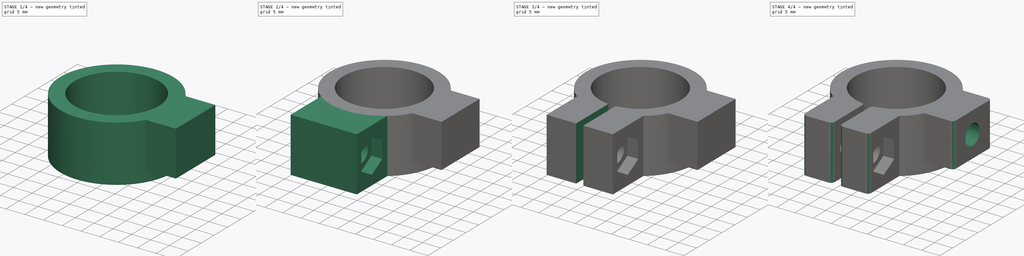
[diagram: build sequence overview — one tinted view per stage of 4, left to right]
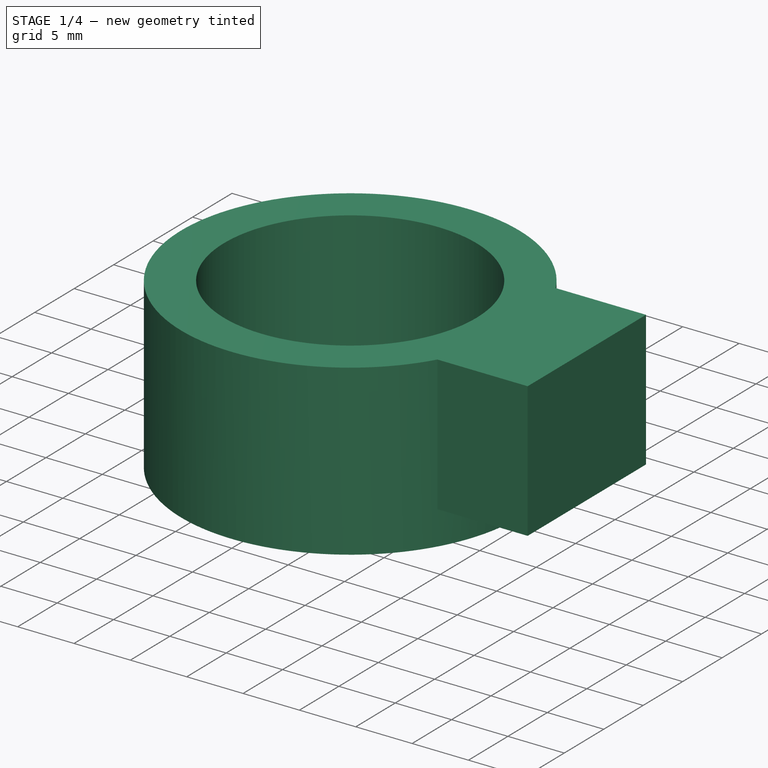
[diagram: stage 1 of 4 — iso view after this stage's code; geometry added in this stage tinted green]
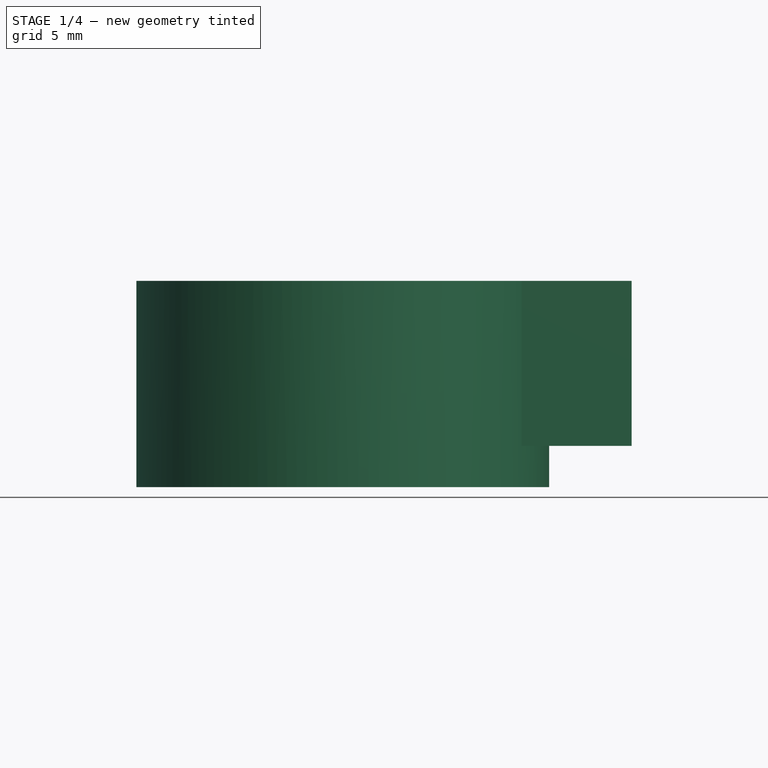
[diagram: stage 1 of 4 — front view after this stage's code; geometry added in this stage tinted green]
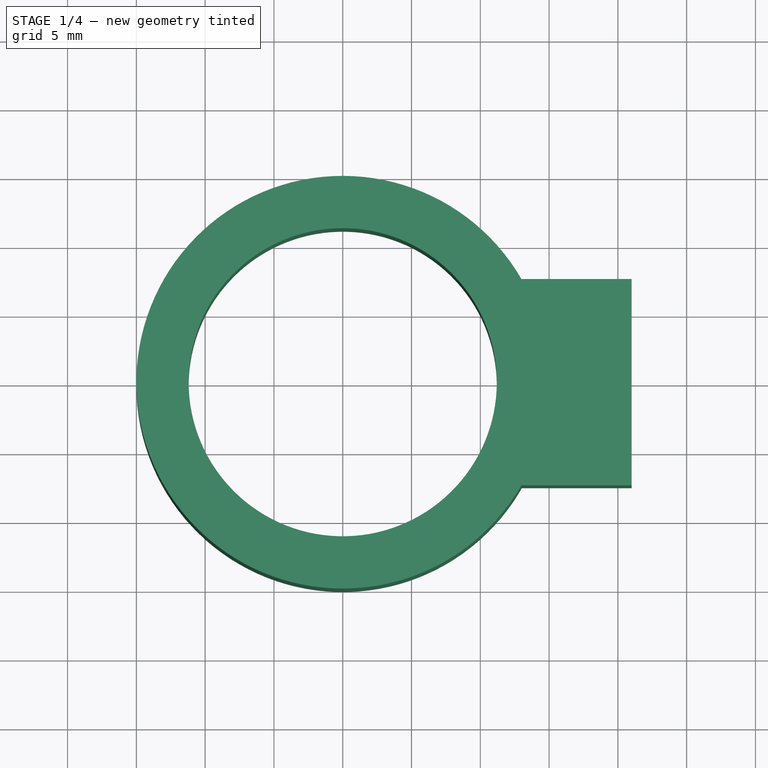
[diagram: stage 1 of 4 — top view after this stage's code; geometry added in this stage tinted green]
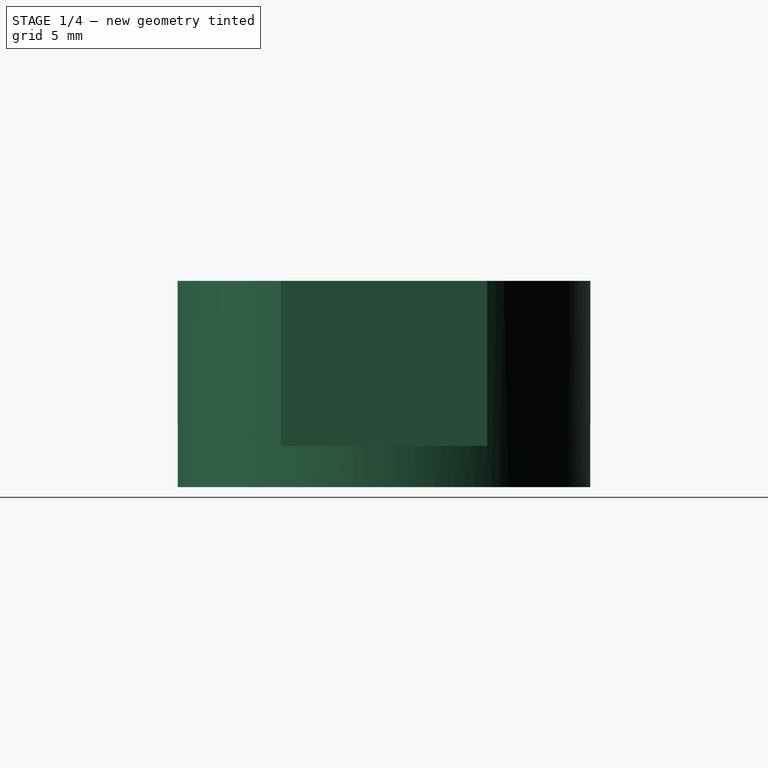
[diagram: stage 1 of 4 — right view after this stage's code; geometry added in this stage tinted green]
FCSTD DOCUMENT  (FreeCAD 0.16R)
Label: iSpecmount
License: All rights reserved
LicenseURL: http://en.wikipedia.org/wiki/All_rights_reserved
objects: Sketcher::SketchObject×10, PartDesign::Pocket×7, PartDesign::Pad×3, PartDesign::Fillet×2
note: 32 computed .brp shape members not serialized (recipe doc carries the construction recipe); baked Part::Feature solids carry a one-line shape summary decoded from their .brp

FEATURE [Sketcher::SketchObject] Sketch
  sketch-geometry (1):
    g0: Circle CenterX=0 CenterY=0 CenterZ=0 NormalX=0 NormalY=0 NormalZ=1 Radius=15
  constraints (2):
    c: Radius(g0) = 15
    c: Coincident(g0,g-1)
FEATURE [PartDesign::Pad] Pad
  Length = 15
  Length2 = 100
  Sketch = -> Sketch
  Type = 0
FEATURE [Sketcher::SketchObject] Sketch001
  Placement = pos=(0,0,15) rot=(0,0,1;0rad)
  Support = -> Pad [Face3]
  sketch-geometry (1):
    g0: Circle CenterX=0 CenterY=0 CenterZ=0 NormalX=0 NormalY=0 NormalZ=1 Radius=11.2
  constraints (2):
    c: Coincident(g0,g-1)
    c: Radius(g0) = 11.2
FEATURE [PartDesign::Pocket] Pocket
  Length = 5
  Sketch = -> Sketch001
  Type = 1
FEATURE [Sketcher::SketchObject] Sketch002
  ExternalGeometry = -> [Pocket]
  Placement = pos=(0,0,15) rot=(0,0,1;0rad)
  Support = -> Pocket [Face3]
  sketch-geometry (4):
    g0: LineSegment StartX=13 StartY=7.5 StartZ=0 EndX=21 EndY=7.5 EndZ=0
    g1: LineSegment StartX=21 StartY=7.5 StartZ=0 EndX=21 EndY=-7.5 EndZ=0
    g2: LineSegment StartX=21 StartY=-7.5 StartZ=0 EndX=13 EndY=-7.5 EndZ=0
    g3: LineSegment StartX=13 StartY=-7.5 StartZ=0 EndX=13 EndY=7.5 EndZ=0
  constraints (12):
    c: Coincident(g0,g1)
    c: Coincident(g1,g2)
    c: Coincident(g2,g3)
    c: Coincident(g3,g0)
    c: Horizontal(g0)
    c: Horizontal(g2)
    c: Vertical(g1)
    c: Vertical(g3)
    c: Distance(g1) = 15
    c: Symmetric(g0,g2,g-1)
    c: Distance(g0) = 8
    c: DistanceX(g2) = 13
FEATURE [PartDesign::Pad] Pad001
  Length = 12
  Length2 = 100
  Reversed = true
  Sketch = -> Sketch002
  Type = 0
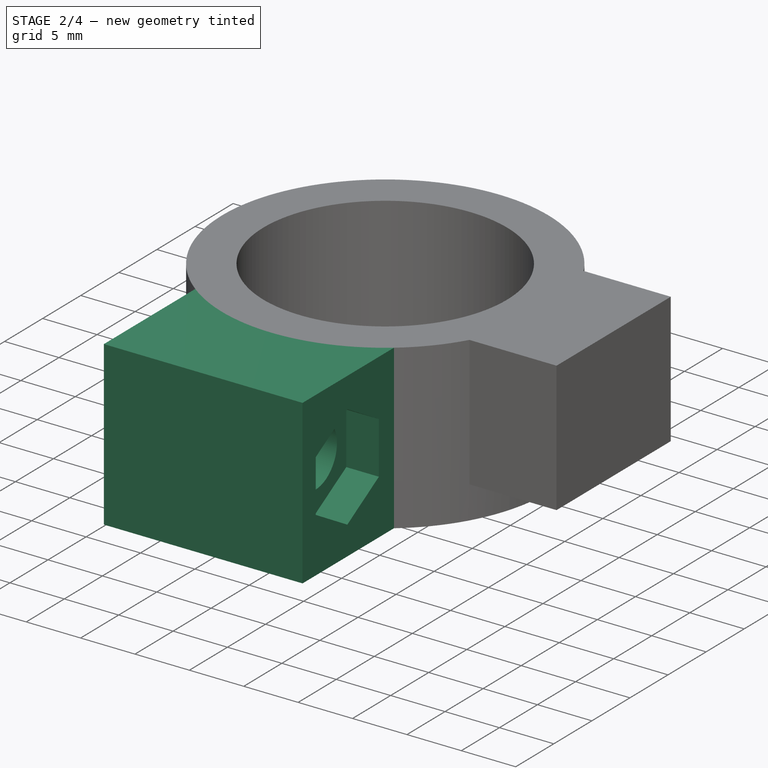
[diagram: stage 2 of 4 — iso view after this stage's code; geometry added in this stage tinted green]
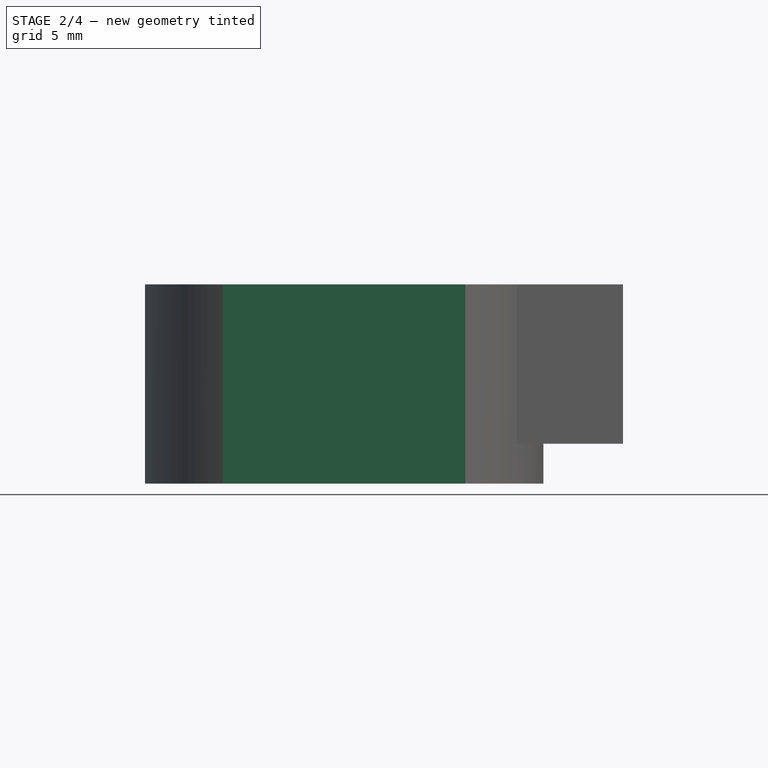
[diagram: stage 2 of 4 — front view after this stage's code; geometry added in this stage tinted green]
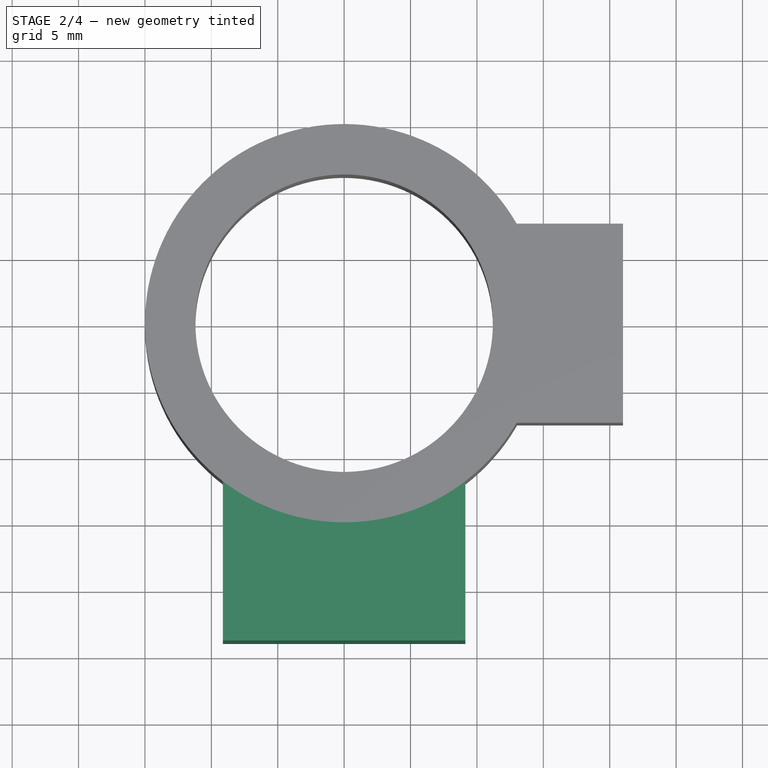
[diagram: stage 2 of 4 — top view after this stage's code; geometry added in this stage tinted green]
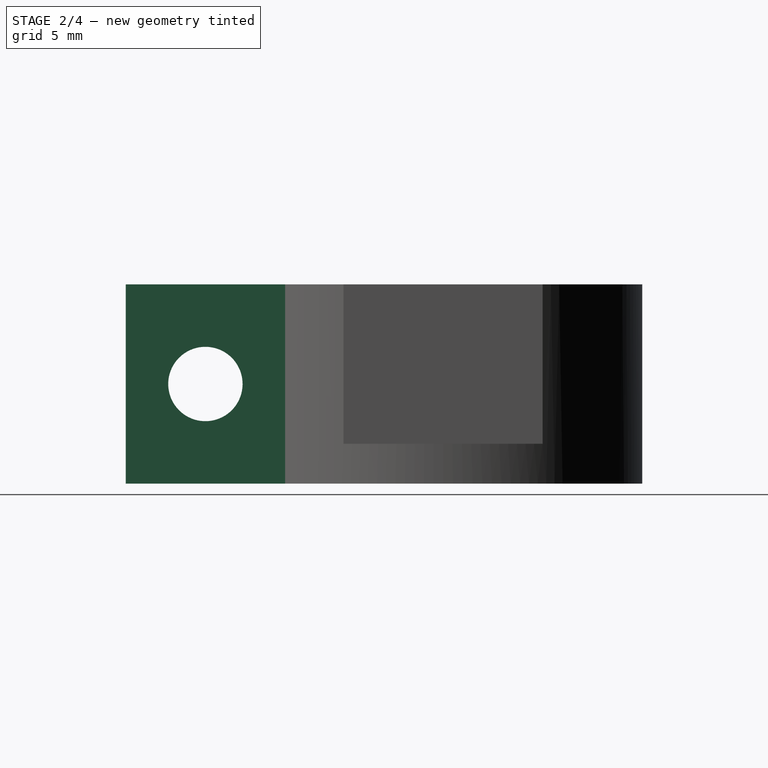
[diagram: stage 2 of 4 — right view after this stage's code; geometry added in this stage tinted green]
FEATURE [Sketcher::SketchObject] Sketch003
  ExternalGeometry = -> [Pad001]
  Placement = pos=(0,0,15) rot=(0,0,1;0rad)
  Support = -> Pad001 [Face6]
  sketch-geometry (4):
    g0: LineSegment StartX=-9.13203 StartY=-11.8998 StartZ=0 EndX=9.13203 EndY=-11.8998 EndZ=0
    g1: LineSegment StartX=9.13203 StartY=-11.8998 StartZ=0 EndX=9.13203 EndY=-23.8998 EndZ=0
    g2: LineSegment StartX=9.13203 StartY=-23.8998 StartZ=0 EndX=-9.13203 EndY=-23.8998 EndZ=0
    g3: LineSegment StartX=-9.13203 StartY=-23.8998 StartZ=0 EndX=-9.13203 EndY=-11.8998 EndZ=0
  constraints (11):
    c: Coincident(g0,g1)
    c: Coincident(g1,g2)
    c: Coincident(g2,g3)
    c: Coincident(g3,g0)
    c: Horizontal(g0)
    c: Horizontal(g2)
    c: Vertical(g1)
    c: Vertical(g3)
    c: Symmetric(g0,g0,g-2)
    c: PointOnObject(g0,g-3)
    c: Distance(g1) = 12
FEATURE [PartDesign::Pad] Pad002
  Length = 15
  Length2 = 100
  Reversed = true
  Sketch = -> Sketch003
  Type = 0
FEATURE [Sketcher::SketchObject] Sketch004
  ExternalGeometry = -> [Pad002]
  Placement = pos=(-9.13203,0,0) rot=(0.57735,-0.57735,-0.57735;2.0944rad)
  Support = -> Pad002 [Face13]
  sketch-geometry (1):
    g0: Circle CenterX=17.8998 CenterY=7.5 CenterZ=0 NormalX=0 NormalY=0 NormalZ=1 Radius=2.8
  constraints (2):
    c: Symmetric(g-5,g-4,g0)
    c: Radius(g0) = 2.8
FEATURE [PartDesign::Pocket] Pocket001
  Length = 5
  Sketch = -> Sketch004
  Type = 1
FEATURE [Sketcher::SketchObject] Sketch005
  ExternalGeometry = -> [Pocket001]
  Placement = pos=(9.13203,0,0) rot=(0.57735,0.57735,0.57735;2.0944rad)
  Support = -> Pocket001 [Face11]
  sketch-geometry (7):
    g0: LineSegment StartX=-18.0234 StartY=2.63711 StartZ=0 EndX=-13.8734 EndY=5.03311 EndZ=0
    g1: LineSegment StartX=-13.8734 StartY=5.03311 StartZ=0 EndX=-13.8734 EndY=9.82512 EndZ=0
    g2: LineSegment StartX=-13.8734 StartY=9.82512 StartZ=0 EndX=-18.0234 EndY=12.2211 EndZ=0
    g3: LineSegment StartX=-18.0234 StartY=12.2211 StartZ=0 EndX=-22.1734 EndY=9.82512 EndZ=0
    g4: LineSegment StartX=-22.1734 StartY=9.82512 StartZ=0 EndX=-22.1734 EndY=5.03311 EndZ=0
    g5: LineSegment StartX=-22.1734 StartY=5.03311 StartZ=0 EndX=-18.0234 EndY=2.63711 EndZ=0
    g6: Circle [constr] CenterX=-18.0234 CenterY=7.42912 CenterZ=0 NormalX=0 NormalY=0 NormalZ=1 Radius=4.79201
  constraints (15):
    c: Coincident(g0,g1)
    c: Coincident(g1,g2)
    c: Coincident(g2,g3)
    c: Coincident(g3,g4)
    c: Coincident(g4,g5)
    c: Coincident(g5,g0)
    c: Equal(g0, g1-g5) x5
    c: PointOnObject(g0,g6)
    c: PointOnObject(g1,g6)
    c: PointOnObject(g2,g6)
    c: PointOnObject(g3,g6)
    c: PointOnObject(g4,g6)
    c: PointOnObject(g5,g6)
    c: Distance(g0,g3) = 8.3
    c: Vertical(g1)
FEATURE [PartDesign::Pocket] Pocket002
  Length = 3
  Sketch = -> Sketch005
  Type = 0
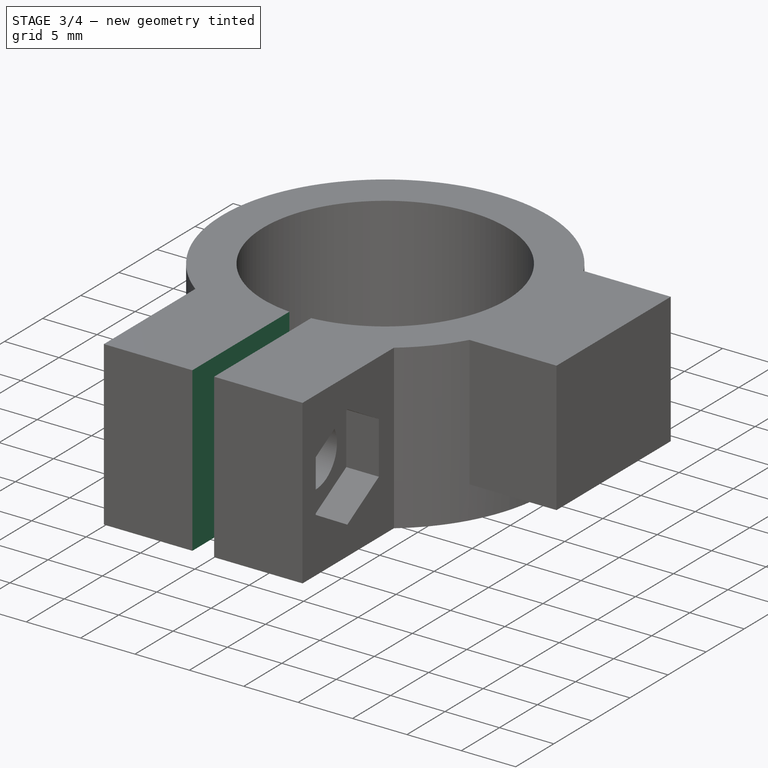
[diagram: stage 3 of 4 — iso view after this stage's code; geometry added in this stage tinted green]
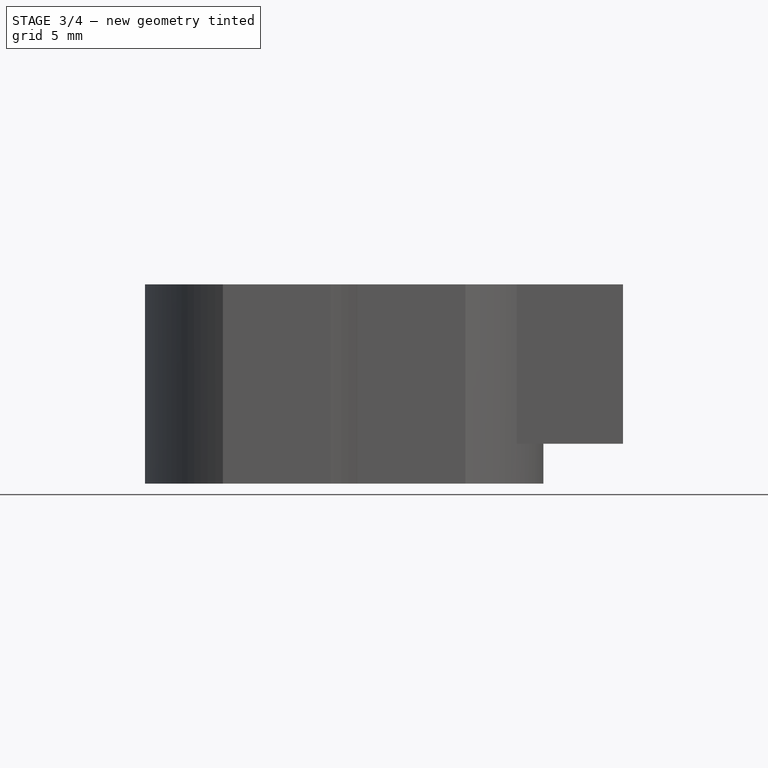
[diagram: stage 3 of 4 — front view after this stage's code; geometry added in this stage tinted green]
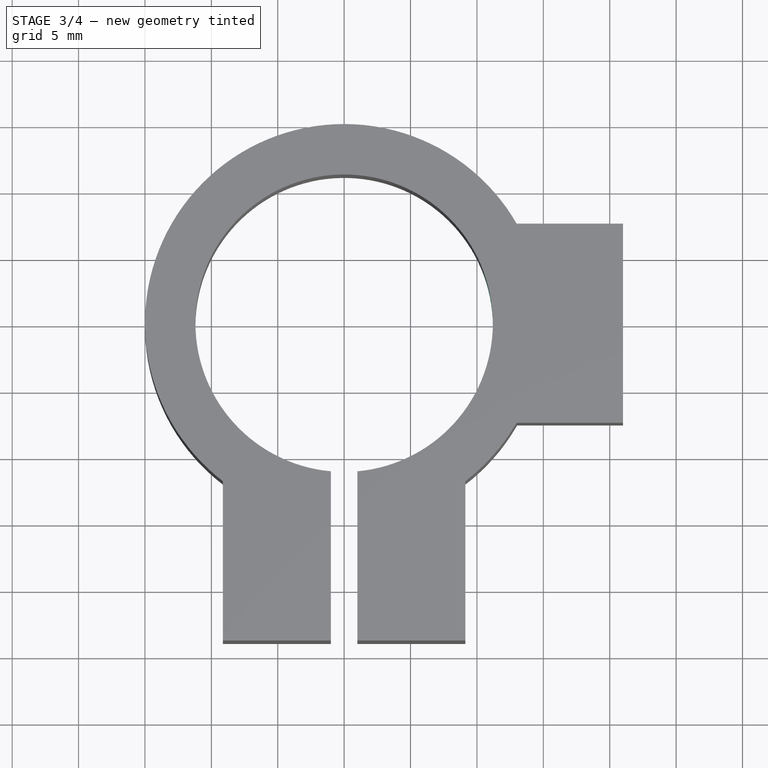
[diagram: stage 3 of 4 — top view after this stage's code; geometry added in this stage tinted green]
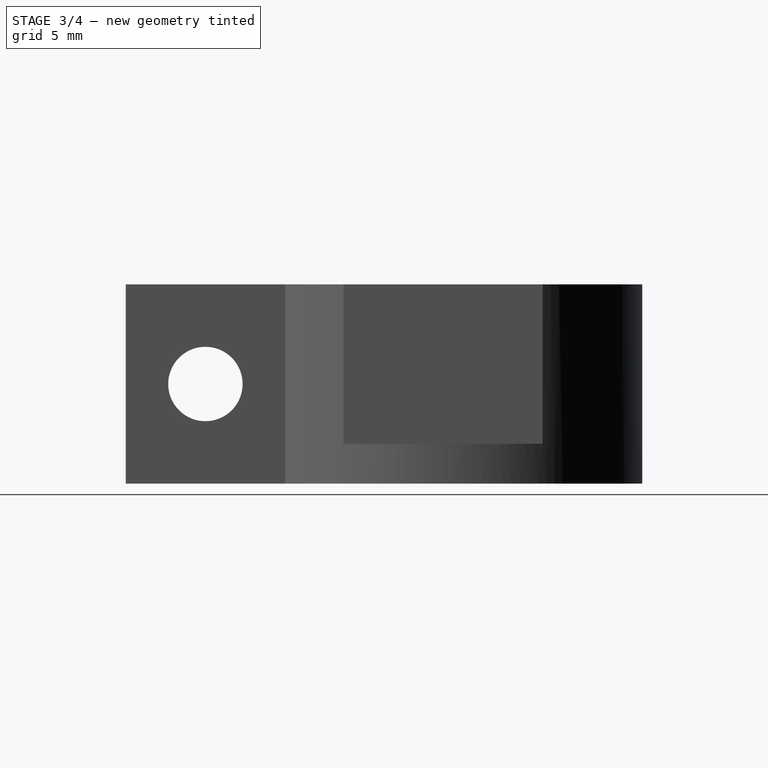
[diagram: stage 3 of 4 — right view after this stage's code; geometry added in this stage tinted green]
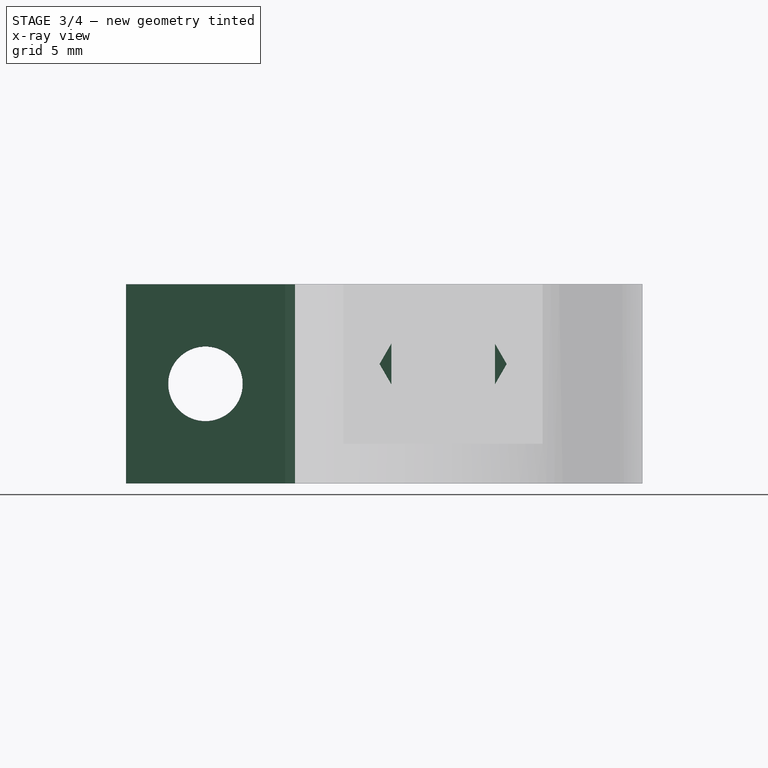
[diagram: stage 3 of 4 — x-ray composite at the right view; earlier geometry ghosted, this stage's added geometry solid]
FEATURE [Sketcher::SketchObject] Sketch006
  ExternalGeometry = -> [Pocket002]
  Placement = pos=(-9.13203,0,0) rot=(0.57735,-0.57735,-0.57735;2.0944rad)
  Support = -> Pocket002 [Face13]
  sketch-geometry (1):
    g0: Circle CenterX=17.8998 CenterY=7.5 CenterZ=0 NormalX=0 NormalY=0 NormalZ=1 Radius=4.5
  constraints (2):
    c: Radius(g0) = 4.5
    c: Coincident(g0,g-3)
FEATURE [PartDesign::Pocket] Pocket003
  Length = 5
  Sketch = -> Sketch006
  Type = 0
FEATURE [Sketcher::SketchObject] Sketch007
  Placement = pos=(0,0,15) rot=(0,0,1;0rad)
  Support = -> Pocket003 [Face12]
  sketch-geometry (4):
    g0: LineSegment StartX=-1 StartY=-5.18522 StartZ=0 EndX=1 EndY=-5.18522 EndZ=0
    g1: LineSegment StartX=1 StartY=-5.18522 StartZ=0 EndX=1 EndY=-34.1346 EndZ=0
    g2: LineSegment StartX=1 StartY=-34.1346 StartZ=0 EndX=-1 EndY=-34.1346 EndZ=0
    g3: LineSegment StartX=-1 StartY=-34.1346 StartZ=0 EndX=-1 EndY=-5.18522 EndZ=0
  constraints (10):
    c: Coincident(g0,g1)
    c: Coincident(g1,g2)
    c: Coincident(g2,g3)
    c: Coincident(g3,g0)
    c: Horizontal(g0)
    c: Horizontal(g2)
    c: Vertical(g1)
    c: Vertical(g3)
    c: Symmetric(g0,g0,g-2)
    c: Distance(g2) = 2
FEATURE [PartDesign::Pocket] Pocket004
  Length = 5
  Sketch = -> Sketch007
  Type = 1
FEATURE [Sketcher::SketchObject] Sketch009
  Placement = pos=(13,0,0) rot=(0.57735,-0.57735,-0.57735;2.0944rad)
  Support = -> Pocket004 [Face25]
  sketch-geometry (7):
    g0: LineSegment StartX=2.396 StartY=4.85 StartZ=0 EndX=4.79201 EndY=9 EndZ=0
    g1: LineSegment StartX=4.79201 StartY=9 StartZ=0 EndX=2.396 EndY=13.15 EndZ=0
    g2: LineSegment StartX=2.396 StartY=13.15 StartZ=0 EndX=-2.396 EndY=13.15 EndZ=0
    g3: LineSegment StartX=-2.396 StartY=13.15 StartZ=0 EndX=-4.79201 EndY=9 EndZ=0
    g4: LineSegment StartX=-4.79201 StartY=9 StartZ=0 EndX=-2.396 EndY=4.85 EndZ=0
    g5: LineSegment StartX=-2.396 StartY=4.85 StartZ=0 EndX=2.396 EndY=4.85 EndZ=0
    g6: Circle [constr] CenterX=0 CenterY=9 CenterZ=0 NormalX=0 NormalY=0 NormalZ=1 Radius=4.79201
  constraints (17):
    c: Coincident(g0,g1)
    c: Coincident(g1,g2)
    c: Coincident(g2,g3)
    c: Coincident(g3,g4)
    c: Coincident(g4,g5)
    c: Coincident(g5,g0)
    c: Equal(g0, g1-g5) x5
    c: PointOnObject(g0,g6)
    c: PointOnObject(g1,g6)
    c: PointOnObject(g2,g6)
    c: PointOnObject(g3,g6)
    c: PointOnObject(g4,g6)
    c: PointOnObject(g5,g6)
    c: Distance(g0,g3) = 8.3
    c: PointOnObject(g6,g-2)
    c: DistanceY(g6) = 9
    c: Horizontal(g5)
FEATURE [PartDesign::Pocket] Pocket005
  Length = 5
  Midplane = true
  Reversed = true
  Sketch = -> Sketch009
  Type = 0
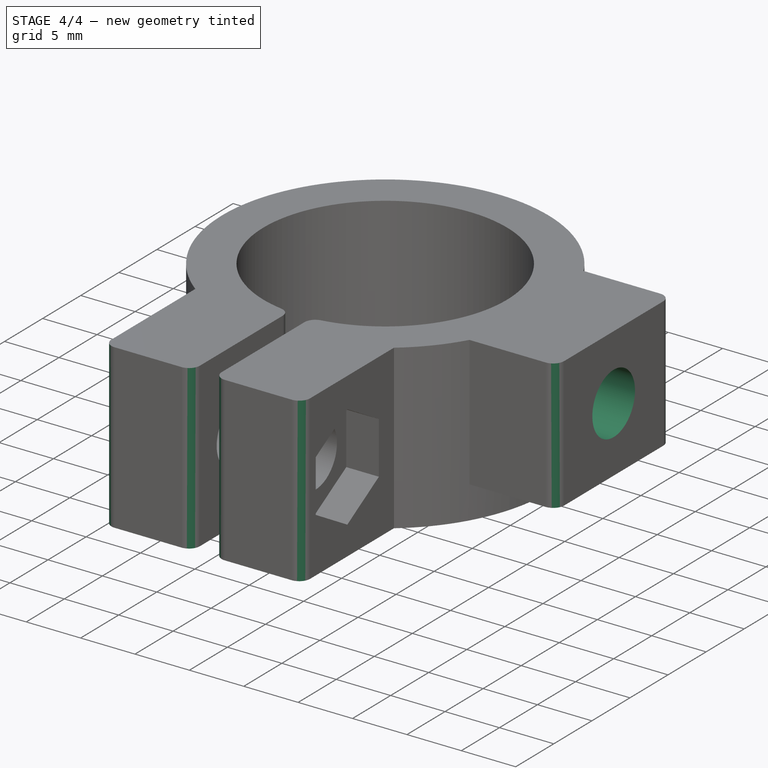
[diagram: stage 4 of 4 — iso view after this stage's code; geometry added in this stage tinted green]
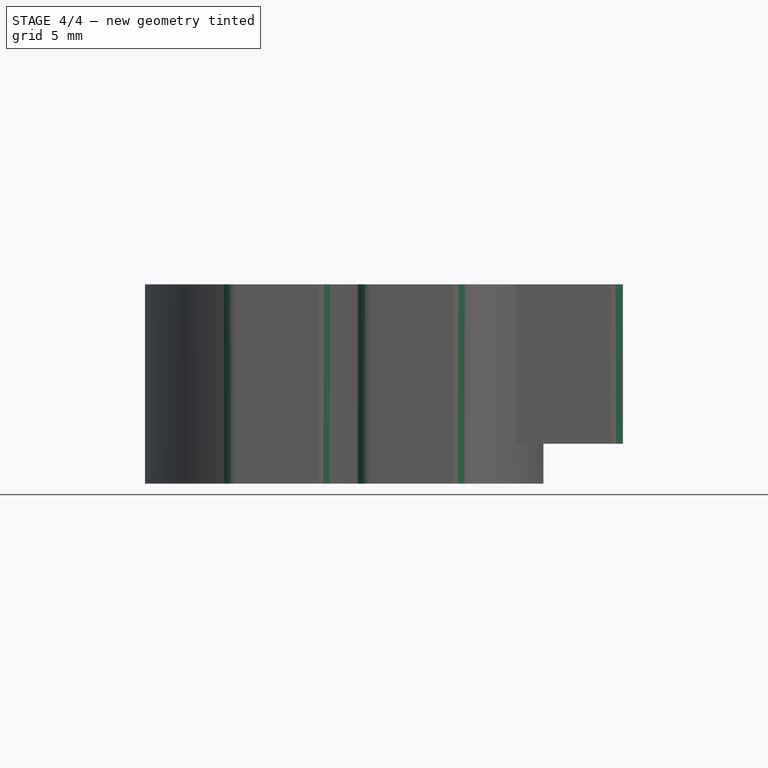
[diagram: stage 4 of 4 — front view after this stage's code; geometry added in this stage tinted green]
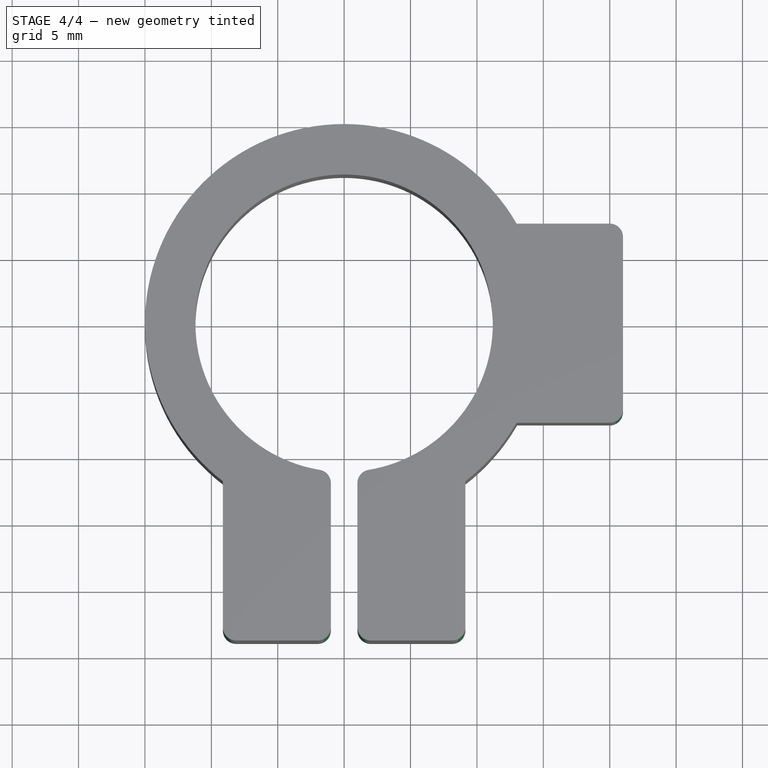
[diagram: stage 4 of 4 — top view after this stage's code; geometry added in this stage tinted green]
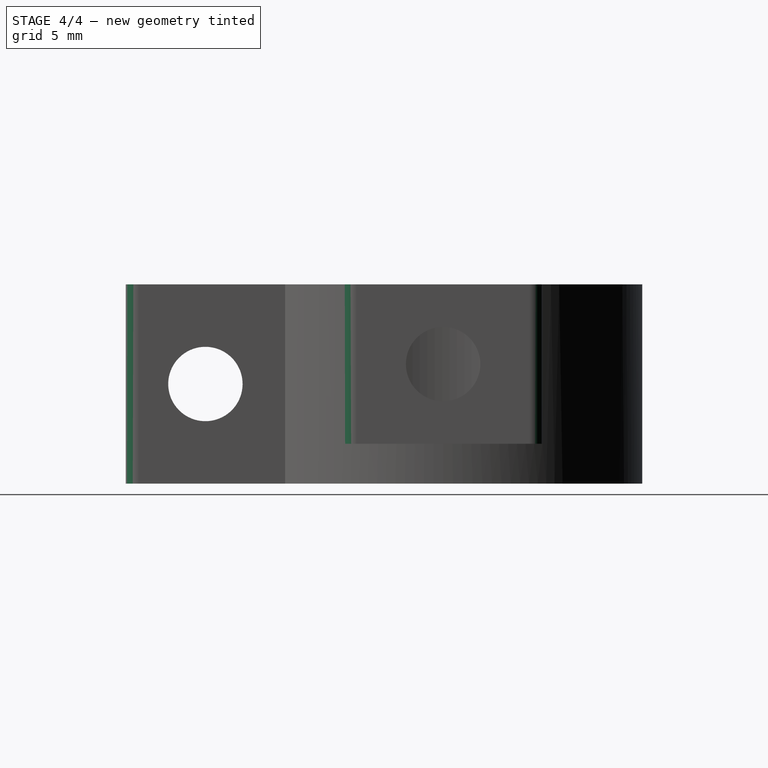
[diagram: stage 4 of 4 — right view after this stage's code; geometry added in this stage tinted green]
FEATURE [Sketcher::SketchObject] Sketch008
  ExternalGeometry = -> [Pocket004]
  Placement = pos=(21,0,0) rot=(0.57735,0.57735,0.57735;2.0944rad)
  Support = -> Pocket005 [Face42]
  sketch-geometry (1):
    g0: Circle CenterX=0 CenterY=9 CenterZ=0 NormalX=0 NormalY=0 NormalZ=1 Radius=2.8
  constraints (3):
    c: Radius(g0) = 2.8
    c: PointOnObject(g0,g-2)
    c: DistanceY(g0) = 9
FEATURE [PartDesign::Pocket] Pocket006
  Length = 14
  Sketch = -> Sketch008
  Type = 0
FEATURE [PartDesign::Fillet] Fillet
  Base = -> Pocket006 [Edge117,Edge118,Edge68,Edge21,Edge54,Edge85]
  Radius = 1
FEATURE [PartDesign::Fillet] Fillet001
  Base = -> Fillet [Edge7,Edge54]
  Radius = 1
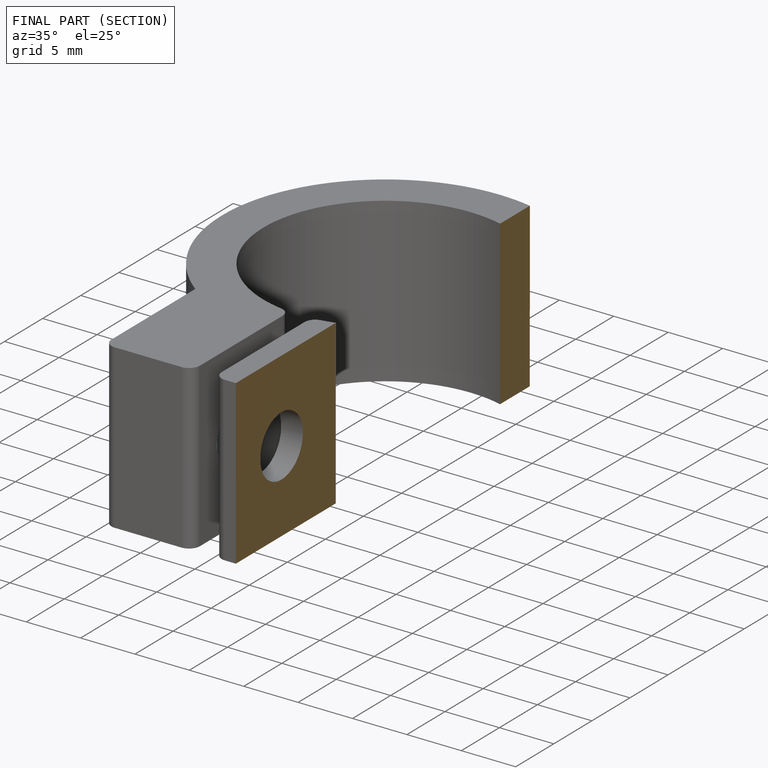
[diagram: finished part — half-section view (interior)]
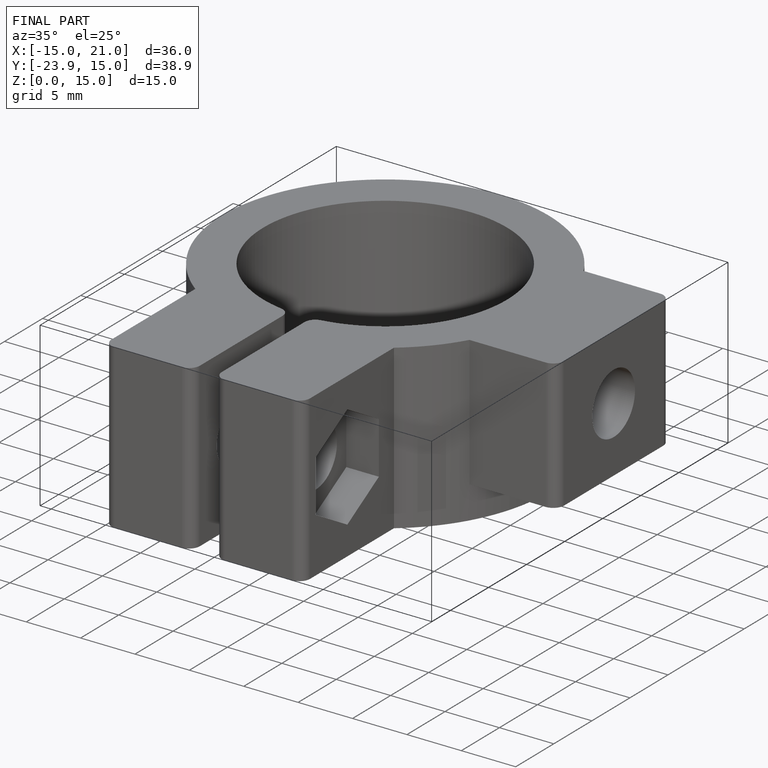
[diagram: finished part — iso view with bounding-box wireframe]
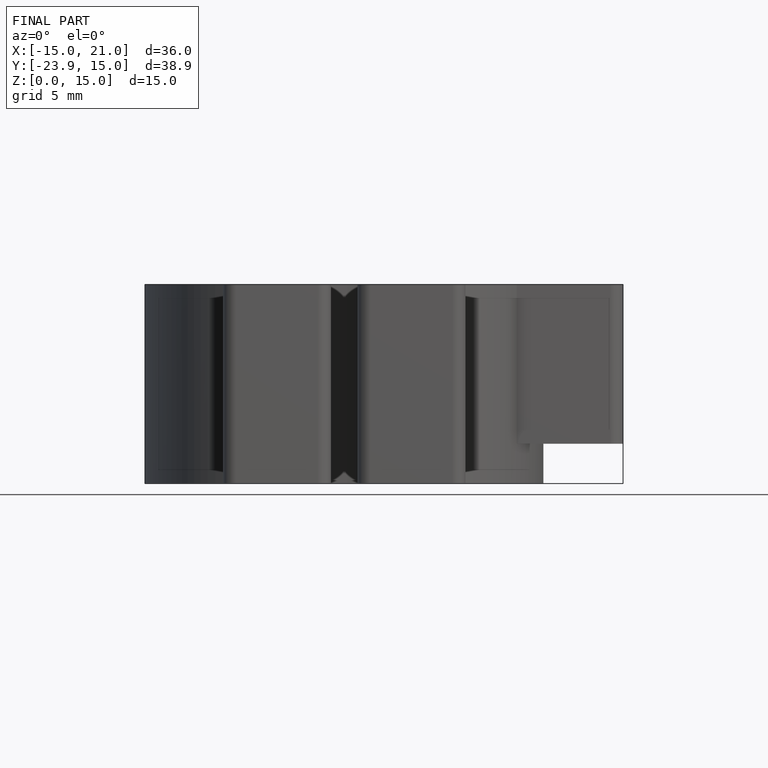
[diagram: finished part — front view with bounding-box wireframe]
